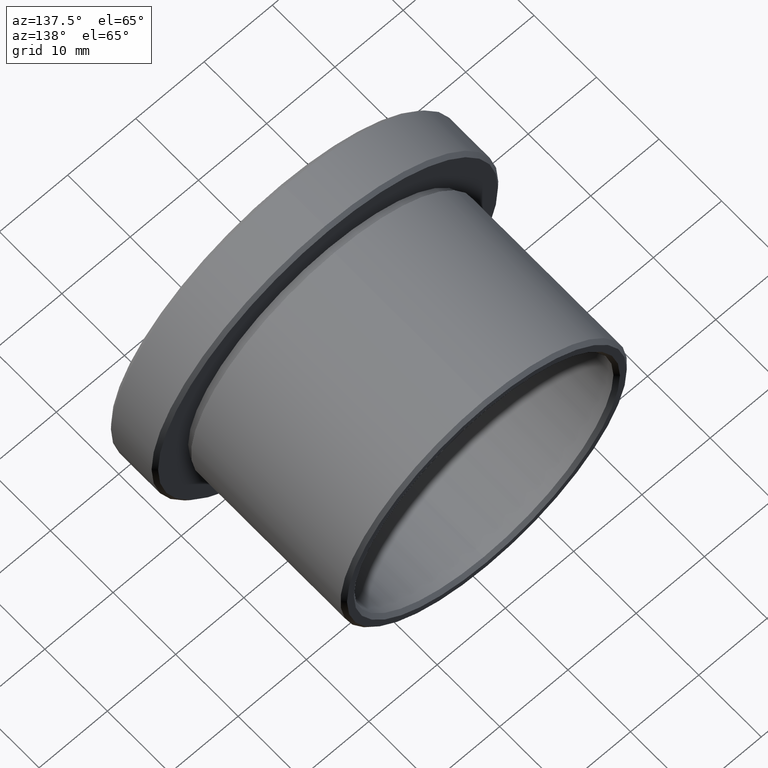
[diagram: clean part render]
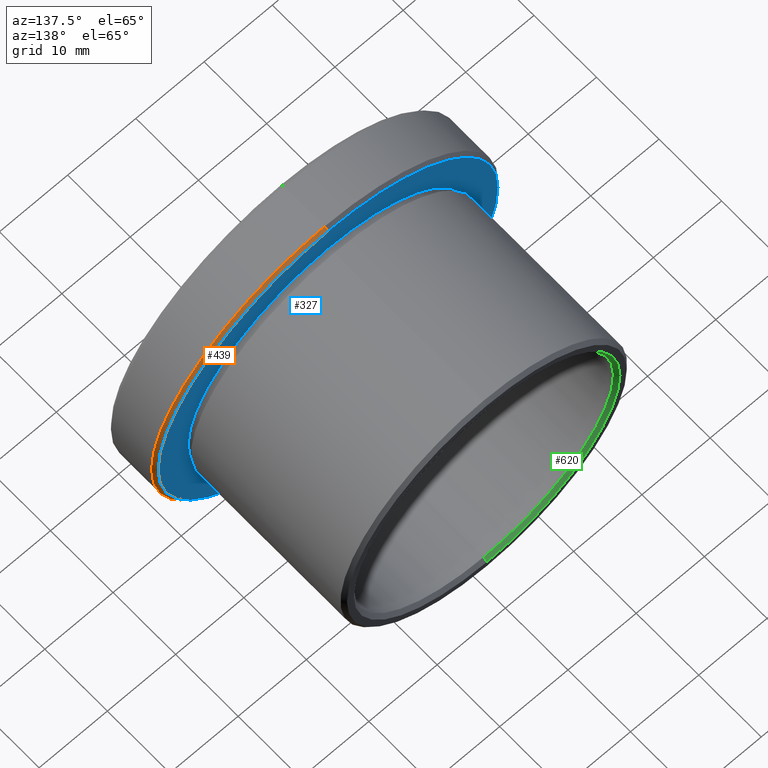
[diagram: same view with three faces highlighted in distinct colors, each labeled with its STEP entity id]
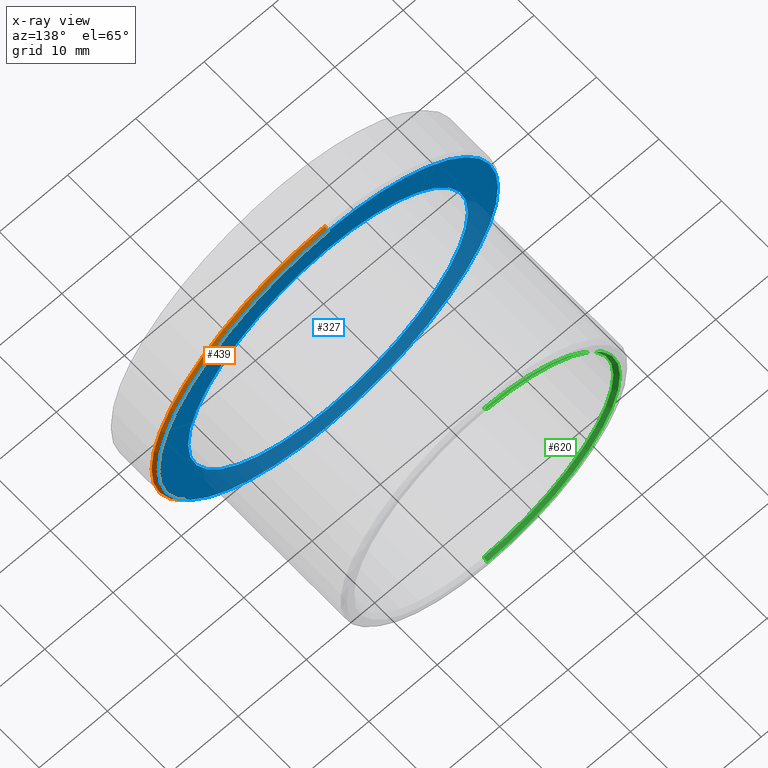
[diagram: x-ray of the same camera — body ghosted, the three highlighted faces saturated]
A machine part, auxiliary view with three faces highlighted in distinct colors.
The next image is the same camera in x-ray (body ghosted, the three faces saturated) — at least one of them is partly hidden behind the body in this view.
Their STEP definitions:

[orange] entity #439 — the highlighted conical surface has half-angle 45 deg.
#4 = VECTOR ( 'NONE', #263, 1000.000000000000000 ) ;
#6 = VERTEX_POINT ( 'NONE', #183 ) ;
#38 = CARTESIAN_POINT ( 'NONE',  ( 0.0000000000000000000, 1.142854174566894300, -25.40000000000000600 ) ) ;
#60 = CARTESIAN_POINT ( 'NONE',  ( 0.0000000000000000000, 1.642854174566894800, -24.90000000000000200 ) ) ;
#63 = CONICAL_SURFACE ( 'NONE', #892, 25.40000000000000600, 0.7853981633974518300 ) ;
#74 = VECTOR ( 'NONE', #618, 1000.000000000000000 ) ;
#97 = VERTEX_POINT ( 'NONE', #60 ) ;
#99 = LINE ( 'NONE', #106, #74 ) ;
#106 = CARTESIAN_POINT ( 'NONE',  ( 3.110602869834277700E-015, 1.142854174566894300, 25.40000000000000600 ) ) ;
#139 = CARTESIAN_POINT ( 'NONE',  ( 3.079986699855593900E-015, 1.642854174566894800, 24.90000000000000200 ) ) ;
#183 = CARTESIAN_POINT ( 'NONE',  ( 0.0000000000000000000, 1.142854174566894300, 25.40000000000000600 ) ) ;
#231 = DIRECTION ( 'NONE',  ( 0.0000000000000000000, 0.0000000000000000000, 1.000000000000000000 ) ) ;
#263 = DIRECTION ( 'NONE',  ( 0.0000000000000000000, -0.7071067811865450200, -0.7071067811865500200 ) ) ;
#282 = DIRECTION ( 'NONE',  ( 0.0000000000000000000, 0.0000000000000000000, -1.000000000000000000 ) ) ;
#285 = CARTESIAN_POINT ( 'NONE',  ( 0.0000000000000000000, 1.142854174566894300, 0.0000000000000000000 ) ) ;
#293 = CARTESIAN_POINT ( 'NONE',  ( 0.0000000000000000000, 1.142854174566894300, 0.0000000000000000000 ) ) ;
#299 = FACE_OUTER_BOUND ( 'NONE', #659, .T. ) ;
#306 = DIRECTION ( 'NONE',  ( -0.0000000000000000000, 1.000000000000000000, -0.0000000000000000000 ) ) ;
#309 = ORIENTED_EDGE ( 'NONE', *, *, #448, .T. ) ;
#310 = CIRCLE ( 'NONE', #521, 24.90000000000000200 ) ;
#322 = LINE ( 'NONE', #38, #4 ) ;
#333 = ORIENTED_EDGE ( 'NONE', *, *, #591, .T. ) ;
#382 = DIRECTION ( 'NONE',  ( 0.0000000000000000000, 0.0000000000000000000, 1.000000000000000000 ) ) ;
#387 = AXIS2_PLACEMENT_3D ( 'NONE', #293, #716, #231 ) ;
#388 = VERTEX_POINT ( 'NONE', #429 ) ;
#418 = VERTEX_POINT ( 'NONE', #139 ) ;
#429 = CARTESIAN_POINT ( 'NONE',  ( 3.110602869834277700E-015, 1.142854174566894300, -25.40000000000000600 ) ) ;
#439 = ADVANCED_FACE ( 'NONE', ( #299 ), #63, .T. ) ;
#448 = EDGE_CURVE ( 'NONE', #6, #388, #836, .T. ) ;
#521 = AXIS2_PLACEMENT_3D ( 'NONE', #800, #306, #382 ) ;
#591 = EDGE_CURVE ( 'NONE', #418, #6, #99, .T. ) ;
#613 = EDGE_CURVE ( 'NONE', #97, #388, #322, .T. ) ;
#618 = DIRECTION ( 'NONE',  ( 8.659560562354963700E-017, -0.7071067811865450200, 0.7071067811865500200 ) ) ;
#630 = DIRECTION ( 'NONE',  ( 0.0000000000000000000, -1.000000000000000000, 0.0000000000000000000 ) ) ;
#659 = EDGE_LOOP ( 'NONE', ( #667, #333, #309, #766 ) ) ;
#667 = ORIENTED_EDGE ( 'NONE', *, *, #860, .F. ) ;
#716 = DIRECTION ( 'NONE',  ( -0.0000000000000000000, 1.000000000000000000, -0.0000000000000000000 ) ) ;
#766 = ORIENTED_EDGE ( 'NONE', *, *, #613, .F. ) ;
#800 = CARTESIAN_POINT ( 'NONE',  ( 0.0000000000000000000, 1.642854174566894800, 0.0000000000000000000 ) ) ;
#836 = CIRCLE ( 'NONE', #387, 25.40000000000000600 ) ;
#860 = EDGE_CURVE ( 'NONE', #418, #97, #310, .T. ) ;
#892 = AXIS2_PLACEMENT_3D ( 'NONE', #285, #630, #282 ) ;

[blue] entity #327 — the highlighted planar face has unit normal (0, -1, 0).
#60 = CARTESIAN_POINT ( 'NONE',  ( 0.0000000000000000000, 1.642854174566894800, -24.90000000000000200 ) ) ;
#81 = CARTESIAN_POINT ( 'NONE',  ( 0.0000000000000000000, 1.642854174566894800, 0.0000000000000000000 ) ) ;
#97 = VERTEX_POINT ( 'NONE', #60 ) ;
#113 = AXIS2_PLACEMENT_3D ( 'NONE', #557, #572, #778 ) ;
#122 = VERTEX_POINT ( 'NONE', #407 ) ;
#130 = ORIENTED_EDGE ( 'NONE', *, *, #785, .F. ) ;
#139 = CARTESIAN_POINT ( 'NONE',  ( 3.079986699855593900E-015, 1.642854174566894800, 24.90000000000000200 ) ) ;
#146 = EDGE_CURVE ( 'NONE', #668, #122, #722, .T. ) ;
#171 = CIRCLE ( 'NONE', #762, 20.50000000000000400 ) ;
#219 = DIRECTION ( 'NONE',  ( 0.0000000000000000000, 0.0000000000000000000, 1.000000000000000000 ) ) ;
#237 = ORIENTED_EDGE ( 'NONE', *, *, #860, .T. ) ;
#275 = AXIS2_PLACEMENT_3D ( 'NONE', #500, #775, #490 ) ;
#306 = DIRECTION ( 'NONE',  ( -0.0000000000000000000, 1.000000000000000000, -0.0000000000000000000 ) ) ;
#310 = CIRCLE ( 'NONE', #521, 24.90000000000000200 ) ;
#327 = ADVANCED_FACE ( 'NONE', ( #645, #633 ), #344, .F. ) ;
#344 = PLANE ( 'NONE',  #113 ) ;
#382 = DIRECTION ( 'NONE',  ( 0.0000000000000000000, 0.0000000000000000000, 1.000000000000000000 ) ) ;
#407 = CARTESIAN_POINT ( 'NONE',  ( 0.0000000000000000000, 1.642854174566894800, 20.50000000000000400 ) ) ;
#418 = VERTEX_POINT ( 'NONE', #139 ) ;
#431 = ORIENTED_EDGE ( 'NONE', *, *, #146, .F. ) ;
#465 = EDGE_LOOP ( 'NONE', ( #549, #237 ) ) ;
#469 = DIRECTION ( 'NONE',  ( 0.0000000000000000000, 0.0000000000000000000, 1.000000000000000000 ) ) ;
#472 = CARTESIAN_POINT ( 'NONE',  ( 0.0000000000000000000, 1.642854174566894800, 0.0000000000000000000 ) ) ;
#490 = DIRECTION ( 'NONE',  ( 0.0000000000000000000, 0.0000000000000000000, 1.000000000000000000 ) ) ;
#500 = CARTESIAN_POINT ( 'NONE',  ( 0.0000000000000000000, 1.642854174566894800, 0.0000000000000000000 ) ) ;
#521 = AXIS2_PLACEMENT_3D ( 'NONE', #800, #306, #382 ) ;
#549 = ORIENTED_EDGE ( 'NONE', *, *, #737, .T. ) ;
#557 = CARTESIAN_POINT ( 'NONE',  ( 20.50000000000000400, 1.642854174566894100, 0.0000000000000000000 ) ) ;
#572 = DIRECTION ( 'NONE',  ( 0.0000000000000000000, -1.000000000000000000, 0.0000000000000000000 ) ) ;
#633 = FACE_OUTER_BOUND ( 'NONE', #465, .T. ) ;
#644 = CIRCLE ( 'NONE', #275, 24.90000000000000200 ) ;
#645 = FACE_BOUND ( 'NONE', #726, .T. ) ;
#668 = VERTEX_POINT ( 'NONE', #759 ) ;
#717 = DIRECTION ( 'NONE',  ( -0.0000000000000000000, 1.000000000000000000, -0.0000000000000000000 ) ) ;
#722 = CIRCLE ( 'NONE', #842, 20.50000000000000400 ) ;
#726 = EDGE_LOOP ( 'NONE', ( #130, #431 ) ) ;
#737 = EDGE_CURVE ( 'NONE', #97, #418, #644, .T. ) ;
#759 = CARTESIAN_POINT ( 'NONE',  ( 2.510525938252074500E-015, 1.642854174566894800, -20.50000000000000400 ) ) ;
#762 = AXIS2_PLACEMENT_3D ( 'NONE', #81, #717, #219 ) ;
#775 = DIRECTION ( 'NONE',  ( -0.0000000000000000000, 1.000000000000000000, -0.0000000000000000000 ) ) ;
#778 = DIRECTION ( 'NONE',  ( 0.0000000000000000000, -0.0000000000000000000, -1.000000000000000000 ) ) ;
#785 = EDGE_CURVE ( 'NONE', #122, #668, #171, .T. ) ;
#800 = CARTESIAN_POINT ( 'NONE',  ( 0.0000000000000000000, 1.642854174566894800, 0.0000000000000000000 ) ) ;
#842 = AXIS2_PLACEMENT_3D ( 'NONE', #472, #880, #469 ) ;
#860 = EDGE_CURVE ( 'NONE', #418, #97, #310, .T. ) ;
#880 = DIRECTION ( 'NONE',  ( -0.0000000000000000000, 1.000000000000000000, -0.0000000000000000000 ) ) ;

[green] entity #620 — the highlighted conical surface has half-angle 45 deg.
#2 = DIRECTION ( 'NONE',  ( 0.0000000000000000000, 0.7071067811865475700, 0.7071067811865474600 ) ) ;
#24 = CARTESIAN_POINT ( 'NONE',  ( 2.388061258337339700E-015, 27.04285417456689100, -19.50000000000000700 ) ) ;
#53 = ORIENTED_EDGE ( 'NONE', *, *, #879, .T. ) ;
#62 = CIRCLE ( 'NONE', #654, 19.00000000000000700 ) ;
#91 = CARTESIAN_POINT ( 'NONE',  ( 0.0000000000000000000, 27.04285417456689100, 19.50000000000000700 ) ) ;
#136 = CARTESIAN_POINT ( 'NONE',  ( 0.0000000000000000000, 27.04285417456689100, 19.50000000000000700 ) ) ;
#172 = CARTESIAN_POINT ( 'NONE',  ( 2.388061258337339700E-015, 27.04285417456689100, -19.50000000000000700 ) ) ;
#182 = AXIS2_PLACEMENT_3D ( 'NONE', #589, #244, #594 ) ;
#206 = CONICAL_SURFACE ( 'NONE', #480, 19.50000000000000700, 0.7853981633974482800 ) ;
#217 = VERTEX_POINT ( 'NONE', #276 ) ;
#244 = DIRECTION ( 'NONE',  ( -0.0000000000000000000, 1.000000000000000000, -0.0000000000000000000 ) ) ;
#246 = DIRECTION ( 'NONE',  ( 0.0000000000000000000, 0.0000000000000000000, 1.000000000000000000 ) ) ;
#265 = EDGE_CURVE ( 'NONE', #217, #755, #517, .T. ) ;
#276 = CARTESIAN_POINT ( 'NONE',  ( 0.0000000000000000000, 26.54285417456689100, 19.00000000000000700 ) ) ;
#295 = CARTESIAN_POINT ( 'NONE',  ( 0.0000000000000000000, 26.54285417456689100, 0.0000000000000000000 ) ) ;
#330 = VERTEX_POINT ( 'NONE', #570 ) ;
#371 = DIRECTION ( 'NONE',  ( -0.0000000000000000000, 1.000000000000000000, -0.0000000000000000000 ) ) ;
#441 = DIRECTION ( 'NONE',  ( 0.0000000000000000000, 0.0000000000000000000, 1.000000000000000000 ) ) ;
#444 = LINE ( 'NONE', #172, #875 ) ;
#473 = ORIENTED_EDGE ( 'NONE', *, *, #831, .F. ) ;
#480 = AXIS2_PLACEMENT_3D ( 'NONE', #686, #666, #246 ) ;
#517 = LINE ( 'NONE', #136, #538 ) ;
#533 = EDGE_CURVE ( 'NONE', #330, #820, #444, .T. ) ;
#535 = EDGE_LOOP ( 'NONE', ( #473, #799, #53, #603 ) ) ;
#538 = VECTOR ( 'NONE', #2, 1000.000000000000000 ) ;
#570 = CARTESIAN_POINT ( 'NONE',  ( 2.357445088358655900E-015, 26.54285417456689100, -19.00000000000000700 ) ) ;
#589 = CARTESIAN_POINT ( 'NONE',  ( 0.0000000000000000000, 27.04285417456689100, 0.0000000000000000000 ) ) ;
#594 = DIRECTION ( 'NONE',  ( 0.0000000000000000000, 0.0000000000000000000, 1.000000000000000000 ) ) ;
#603 = ORIENTED_EDGE ( 'NONE', *, *, #265, .F. ) ;
#620 = ADVANCED_FACE ( 'NONE', ( #727 ), #206, .F. ) ;
#654 = AXIS2_PLACEMENT_3D ( 'NONE', #295, #371, #441 ) ;
#666 = DIRECTION ( 'NONE',  ( -0.0000000000000000000, 1.000000000000000000, -0.0000000000000000000 ) ) ;
#686 = CARTESIAN_POINT ( 'NONE',  ( 0.0000000000000000000, 27.04285417456689100, 0.0000000000000000000 ) ) ;
#727 = FACE_OUTER_BOUND ( 'NONE', #535, .T. ) ;
#734 = DIRECTION ( 'NONE',  ( 8.659560562354931600E-017, 0.7071067811865475700, -0.7071067811865474600 ) ) ;
#755 = VERTEX_POINT ( 'NONE', #91 ) ;
#763 = CIRCLE ( 'NONE', #182, 19.50000000000000700 ) ;
#799 = ORIENTED_EDGE ( 'NONE', *, *, #533, .T. ) ;
#820 = VERTEX_POINT ( 'NONE', #24 ) ;
#831 = EDGE_CURVE ( 'NONE', #330, #217, #62, .T. ) ;
#875 = VECTOR ( 'NONE', #734, 1000.000000000000000 ) ;
#879 = EDGE_CURVE ( 'NONE', #820, #755, #763, .T. ) ;